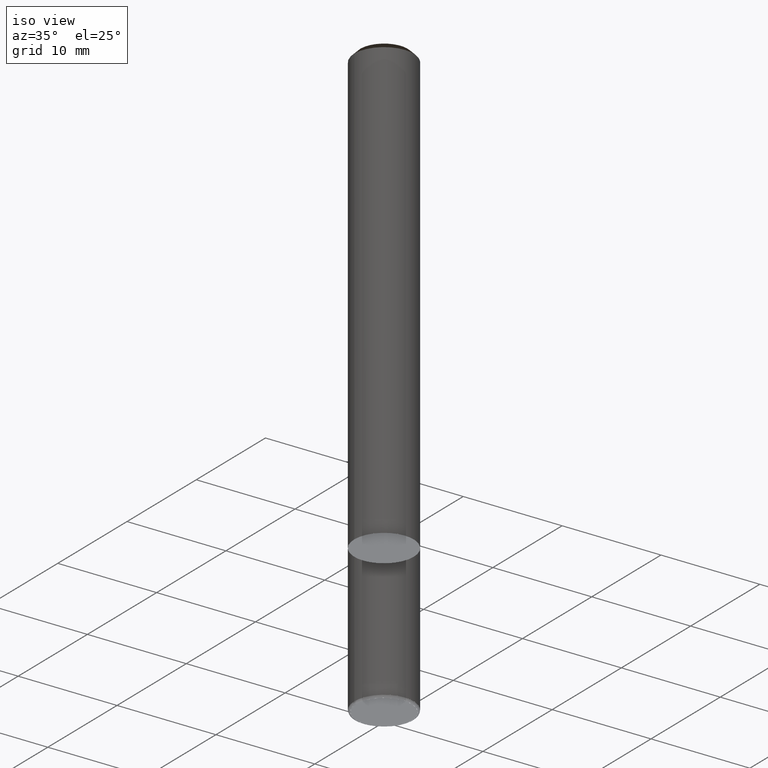
[diagram: clean part render]
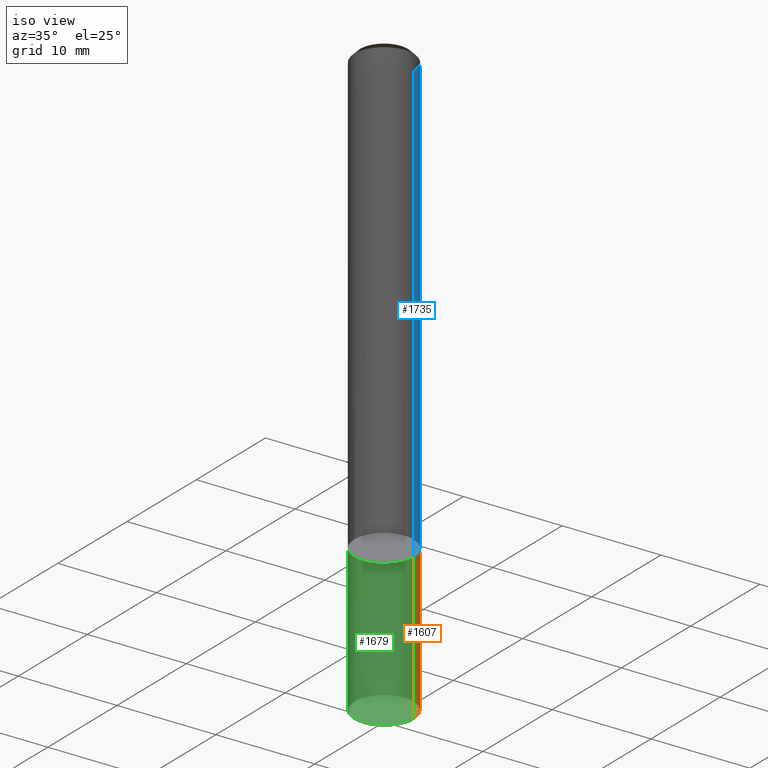
[diagram: same view with three faces highlighted in distinct colors, each labeled with its STEP entity id]
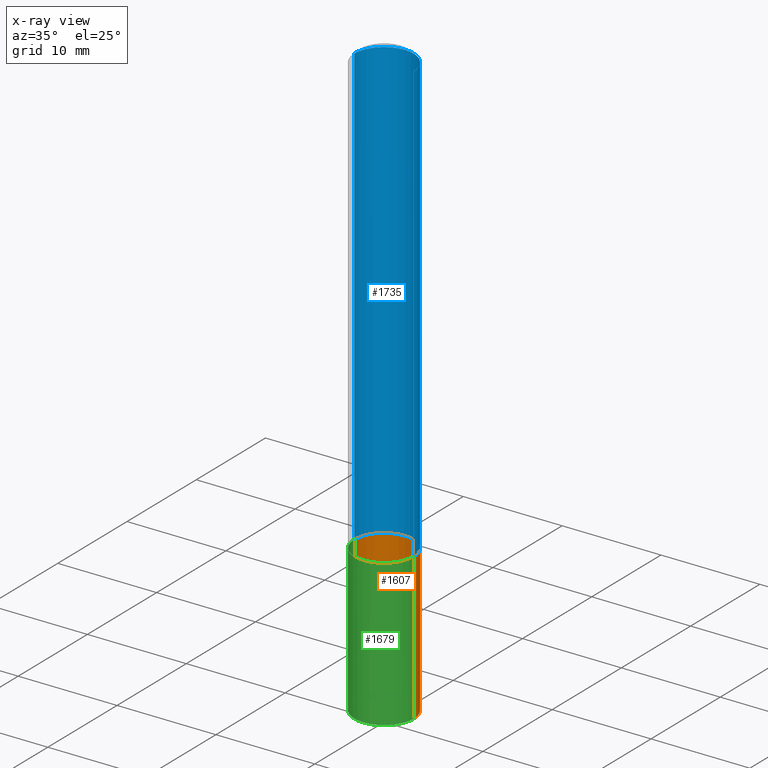
[diagram: x-ray of the same camera — body ghosted, the three highlighted faces saturated]
A machine part, iso view with three faces highlighted in distinct colors.
The next image is the same camera in x-ray (body ghosted, the three faces saturated) — at least one of them is partly hidden behind the body in this view.
Their STEP definitions:

[orange] entity #1607 — the highlighted face is a freeform B-spline surface patch.
#1497=CARTESIAN_POINT('',(3.0,0.0,-14.8));
#1498=CARTESIAN_POINT('',(3.0,3.0,-14.8));
#1499=CARTESIAN_POINT('',(0.0,3.0,-14.8));
#1500=CARTESIAN_POINT('',(-3.0,3.0,-14.8));
#1501=CARTESIAN_POINT('',(-3.0,0.0,-14.8));
#1502=CARTESIAN_POINT('',(3.0,0.0,0.0));
#1503=CARTESIAN_POINT('',(3.0,3.0,0.0));
#1504=CARTESIAN_POINT('',(0.0,3.0,0.0));
#1505=CARTESIAN_POINT('',(-3.0,3.0,0.0));
#1506=CARTESIAN_POINT('',(-3.0,0.0,0.0));
#1588=(
BOUNDED_SURFACE()
B_SPLINE_SURFACE(1,2,(
(#1497,#1498,#1499,#1500,#1501),
(#1502,#1503,#1504,#1505,#1506)
), .UNSPECIFIED.,.F.,.F.,.F.)
B_SPLINE_SURFACE_WITH_KNOTS((2,2),(3,2,3),(
0.0,1.0),(
0.0,0.5,1.0), .UNSPECIFIED.)
GEOMETRIC_REPRESENTATION_ITEM()
RATIONAL_B_SPLINE_SURFACE(((1.0,0.707106781187,1.0,0.707106781187,1.0),
(1.0,0.707106781187,1.0,0.707106781187,1.0)
))
REPRESENTATION_ITEM('')
SURFACE()
);
#1589=(
BOUNDED_CURVE()
B_SPLINE_CURVE(2,(#1502,#1503,#1504,#1505,#1506),.UNSPECIFIED.,.F.,.F.)
B_SPLINE_CURVE_WITH_KNOTS((3,2,3),
(0.0,0.5,1.0),.UNSPECIFIED.)
CURVE()
GEOMETRIC_REPRESENTATION_ITEM()
RATIONAL_B_SPLINE_CURVE((1.0,0.707106781187,1.0,0.707106781187,1.0))
REPRESENTATION_ITEM('')
);
#1590=(
BOUNDED_CURVE()
B_SPLINE_CURVE(1,(#1506,#1501),.UNSPECIFIED.,.F.,.F.)
B_SPLINE_CURVE_WITH_KNOTS((2,2),
(0.0,1.0),.UNSPECIFIED.)
CURVE()
GEOMETRIC_REPRESENTATION_ITEM()
RATIONAL_B_SPLINE_CURVE((1.0,1.0))
REPRESENTATION_ITEM('')
);
#1591=(
BOUNDED_CURVE()
B_SPLINE_CURVE(2,(#1501,#1500,#1499,#1498,#1497),.UNSPECIFIED.,.F.,.F.)
B_SPLINE_CURVE_WITH_KNOTS((3,2,3),
(0.0,0.5,1.0),.UNSPECIFIED.)
CURVE()
GEOMETRIC_REPRESENTATION_ITEM()
RATIONAL_B_SPLINE_CURVE((1.0,0.707106781187,1.0,0.707106781187,1.0))
REPRESENTATION_ITEM('')
);
#1592=(
BOUNDED_CURVE()
B_SPLINE_CURVE(1,(#1497,#1502),.UNSPECIFIED.,.F.,.F.)
B_SPLINE_CURVE_WITH_KNOTS((2,2),
(0.0,1.0),.UNSPECIFIED.)
CURVE()
GEOMETRIC_REPRESENTATION_ITEM()
RATIONAL_B_SPLINE_CURVE((1.0,1.0))
REPRESENTATION_ITEM('')
);
#1593=VERTEX_POINT('',#1497);
#1594=VERTEX_POINT('',#1501);
#1595=VERTEX_POINT('',#1502);
#1596=VERTEX_POINT('',#1506);
#1597=EDGE_CURVE('',#1595,#1596,#1589,.T.);
#1598=EDGE_CURVE('',#1596,#1594,#1590,.T.);
#1599=EDGE_CURVE('',#1594,#1593,#1591,.T.);
#1600=EDGE_CURVE('',#1593,#1595,#1592,.T.);
#1601=ORIENTED_EDGE('',*,*,#1597,.T.);
#1602=ORIENTED_EDGE('',*,*,#1598,.T.);
#1603=ORIENTED_EDGE('',*,*,#1599,.T.);
#1604=ORIENTED_EDGE('',*,*,#1600,.T.);
#1605=EDGE_LOOP('',(#1601,#1602,#1603,#1604));
#1606=FACE_OUTER_BOUND('',#1605,.T.);
#1607=ADVANCED_FACE('',(#1606),#1588,.T.);

[blue] entity #1735 — the highlighted face is a freeform B-spline surface patch.
#1502=CARTESIAN_POINT('',(3.0,0.0,0.0));
#1503=CARTESIAN_POINT('',(3.0,3.0,0.0));
#1504=CARTESIAN_POINT('',(0.0,3.0,0.0));
#1505=CARTESIAN_POINT('',(-3.0,3.0,0.0));
#1506=CARTESIAN_POINT('',(-3.0,0.0,0.0));
#1526=CARTESIAN_POINT('',(3.0,0.0,44.4));
#1527=CARTESIAN_POINT('',(3.0,3.0,44.4));
#1528=CARTESIAN_POINT('',(0.0,3.0,44.4));
#1529=CARTESIAN_POINT('',(-3.0,3.0,44.4));
#1530=CARTESIAN_POINT('',(-3.0,0.0,44.4));
#1716=(
BOUNDED_SURFACE()
B_SPLINE_SURFACE(1,2,(
(#1502,#1503,#1504,#1505,#1506),
(#1526,#1527,#1528,#1529,#1530)
), .UNSPECIFIED.,.F.,.F.,.F.)
B_SPLINE_SURFACE_WITH_KNOTS((2,2),(3,2,3),(
0.0,1.0),(
0.0,0.5,1.0), .UNSPECIFIED.)
GEOMETRIC_REPRESENTATION_ITEM()
RATIONAL_B_SPLINE_SURFACE(((1.0,0.707106781187,1.0,0.707106781187,1.0),
(1.0,0.707106781187,1.0,0.707106781187,1.0)
))
REPRESENTATION_ITEM('')
SURFACE()
);
#1717=(
BOUNDED_CURVE()
B_SPLINE_CURVE(2,(#1526,#1527,#1528,#1529,#1530),.UNSPECIFIED.,.F.,.F.)
B_SPLINE_CURVE_WITH_KNOTS((3,2,3),
(0.0,0.5,1.0),.UNSPECIFIED.)
CURVE()
GEOMETRIC_REPRESENTATION_ITEM()
RATIONAL_B_SPLINE_CURVE((1.0,0.707106781187,1.0,0.707106781187,1.0))
REPRESENTATION_ITEM('')
);
#1718=(
BOUNDED_CURVE()
B_SPLINE_CURVE(1,(#1530,#1506),.UNSPECIFIED.,.F.,.F.)
B_SPLINE_CURVE_WITH_KNOTS((2,2),
(0.0,1.0),.UNSPECIFIED.)
CURVE()
GEOMETRIC_REPRESENTATION_ITEM()
RATIONAL_B_SPLINE_CURVE((1.0,1.0))
REPRESENTATION_ITEM('')
);
#1719=(
BOUNDED_CURVE()
B_SPLINE_CURVE(2,(#1506,#1505,#1504,#1503,#1502),.UNSPECIFIED.,.F.,.F.)
B_SPLINE_CURVE_WITH_KNOTS((3,2,3),
(0.0,0.5,1.0),.UNSPECIFIED.)
CURVE()
GEOMETRIC_REPRESENTATION_ITEM()
RATIONAL_B_SPLINE_CURVE((1.0,0.707106781187,1.0,0.707106781187,1.0))
REPRESENTATION_ITEM('')
);
#1720=(
BOUNDED_CURVE()
B_SPLINE_CURVE(1,(#1502,#1526),.UNSPECIFIED.,.F.,.F.)
B_SPLINE_CURVE_WITH_KNOTS((2,2),
(0.0,1.0),.UNSPECIFIED.)
CURVE()
GEOMETRIC_REPRESENTATION_ITEM()
RATIONAL_B_SPLINE_CURVE((1.0,1.0))
REPRESENTATION_ITEM('')
);
#1721=VERTEX_POINT('',#1502);
#1722=VERTEX_POINT('',#1506);
#1723=VERTEX_POINT('',#1526);
#1724=VERTEX_POINT('',#1530);
#1725=EDGE_CURVE('',#1723,#1724,#1717,.T.);
#1726=EDGE_CURVE('',#1724,#1722,#1718,.T.);
#1727=EDGE_CURVE('',#1722,#1721,#1719,.T.);
#1728=EDGE_CURVE('',#1721,#1723,#1720,.T.);
#1729=ORIENTED_EDGE('',*,*,#1725,.T.);
#1730=ORIENTED_EDGE('',*,*,#1726,.T.);
#1731=ORIENTED_EDGE('',*,*,#1727,.T.);
#1732=ORIENTED_EDGE('',*,*,#1728,.T.);
#1733=EDGE_LOOP('',(#1729,#1730,#1731,#1732));
#1734=FACE_OUTER_BOUND('',#1733,.T.);
#1735=ADVANCED_FACE('',(#1734),#1716,.T.);

[green] entity #1679 — the highlighted face is a freeform B-spline surface patch.
#1497=CARTESIAN_POINT('',(3.0,0.0,-14.8));
#1501=CARTESIAN_POINT('',(-3.0,0.0,-14.8));
#1502=CARTESIAN_POINT('',(3.0,0.0,0.0));
#1506=CARTESIAN_POINT('',(-3.0,0.0,0.0));
#1520=CARTESIAN_POINT('',(-3.0,-3.0,-14.8));
#1521=CARTESIAN_POINT('',(0.0,-3.0,-14.8));
#1522=CARTESIAN_POINT('',(3.0,-3.0,-14.8));
#1523=CARTESIAN_POINT('',(-3.0,-3.0,0.0));
#1524=CARTESIAN_POINT('',(0.0,-3.0,0.0));
#1525=CARTESIAN_POINT('',(3.0,-3.0,0.0));
#1660=(
BOUNDED_SURFACE()
B_SPLINE_SURFACE(1,2,(
(#1501,#1520,#1521,#1522,#1497),
(#1506,#1523,#1524,#1525,#1502)
), .UNSPECIFIED.,.F.,.F.,.F.)
B_SPLINE_SURFACE_WITH_KNOTS((2,2),(3,2,3),(
0.0,1.0),(
0.0,0.5,1.0), .UNSPECIFIED.)
GEOMETRIC_REPRESENTATION_ITEM()
RATIONAL_B_SPLINE_SURFACE(((1.0,0.707106781187,1.0,0.707106781187,1.0),
(1.0,0.707106781187,1.0,0.707106781187,1.0)
))
REPRESENTATION_ITEM('')
SURFACE()
);
#1661=(
BOUNDED_CURVE()
B_SPLINE_CURVE(1,(#1506,#1501),.UNSPECIFIED.,.F.,.F.)
B_SPLINE_CURVE_WITH_KNOTS((2,2),
(0.0,1.0),.UNSPECIFIED.)
CURVE()
GEOMETRIC_REPRESENTATION_ITEM()
RATIONAL_B_SPLINE_CURVE((1.0,1.0))
REPRESENTATION_ITEM('')
);
#1662=(
BOUNDED_CURVE()
B_SPLINE_CURVE(2,(#1501,#1520,#1521,#1522,#1497),.UNSPECIFIED.,.F.,.F.)
B_SPLINE_CURVE_WITH_KNOTS((3,2,3),
(0.0,0.5,1.0),.UNSPECIFIED.)
CURVE()
GEOMETRIC_REPRESENTATION_ITEM()
RATIONAL_B_SPLINE_CURVE((1.0,0.707106781187,1.0,0.707106781187,1.0))
REPRESENTATION_ITEM('')
);
#1663=(
BOUNDED_CURVE()
B_SPLINE_CURVE(1,(#1497,#1502),.UNSPECIFIED.,.F.,.F.)
B_SPLINE_CURVE_WITH_KNOTS((2,2),
(0.0,1.0),.UNSPECIFIED.)
CURVE()
GEOMETRIC_REPRESENTATION_ITEM()
RATIONAL_B_SPLINE_CURVE((1.0,1.0))
REPRESENTATION_ITEM('')
);
#1664=(
BOUNDED_CURVE()
B_SPLINE_CURVE(2,(#1502,#1525,#1524,#1523,#1506),.UNSPECIFIED.,.F.,.F.)
B_SPLINE_CURVE_WITH_KNOTS((3,2,3),
(0.0,0.5,1.0),.UNSPECIFIED.)
CURVE()
GEOMETRIC_REPRESENTATION_ITEM()
RATIONAL_B_SPLINE_CURVE((1.0,0.707106781187,1.0,0.707106781187,1.0))
REPRESENTATION_ITEM('')
);
#1665=VERTEX_POINT('',#1497);
#1666=VERTEX_POINT('',#1501);
#1667=VERTEX_POINT('',#1502);
#1668=VERTEX_POINT('',#1506);
#1669=EDGE_CURVE('',#1668,#1666,#1661,.T.);
#1670=EDGE_CURVE('',#1666,#1665,#1662,.T.);
#1671=EDGE_CURVE('',#1665,#1667,#1663,.T.);
#1672=EDGE_CURVE('',#1667,#1668,#1664,.T.);
#1673=ORIENTED_EDGE('',*,*,#1669,.T.);
#1674=ORIENTED_EDGE('',*,*,#1670,.T.);
#1675=ORIENTED_EDGE('',*,*,#1671,.T.);
#1676=ORIENTED_EDGE('',*,*,#1672,.T.);
#1677=EDGE_LOOP('',(#1673,#1674,#1675,#1676));
#1678=FACE_OUTER_BOUND('',#1677,.T.);
#1679=ADVANCED_FACE('',(#1678),#1660,.T.);